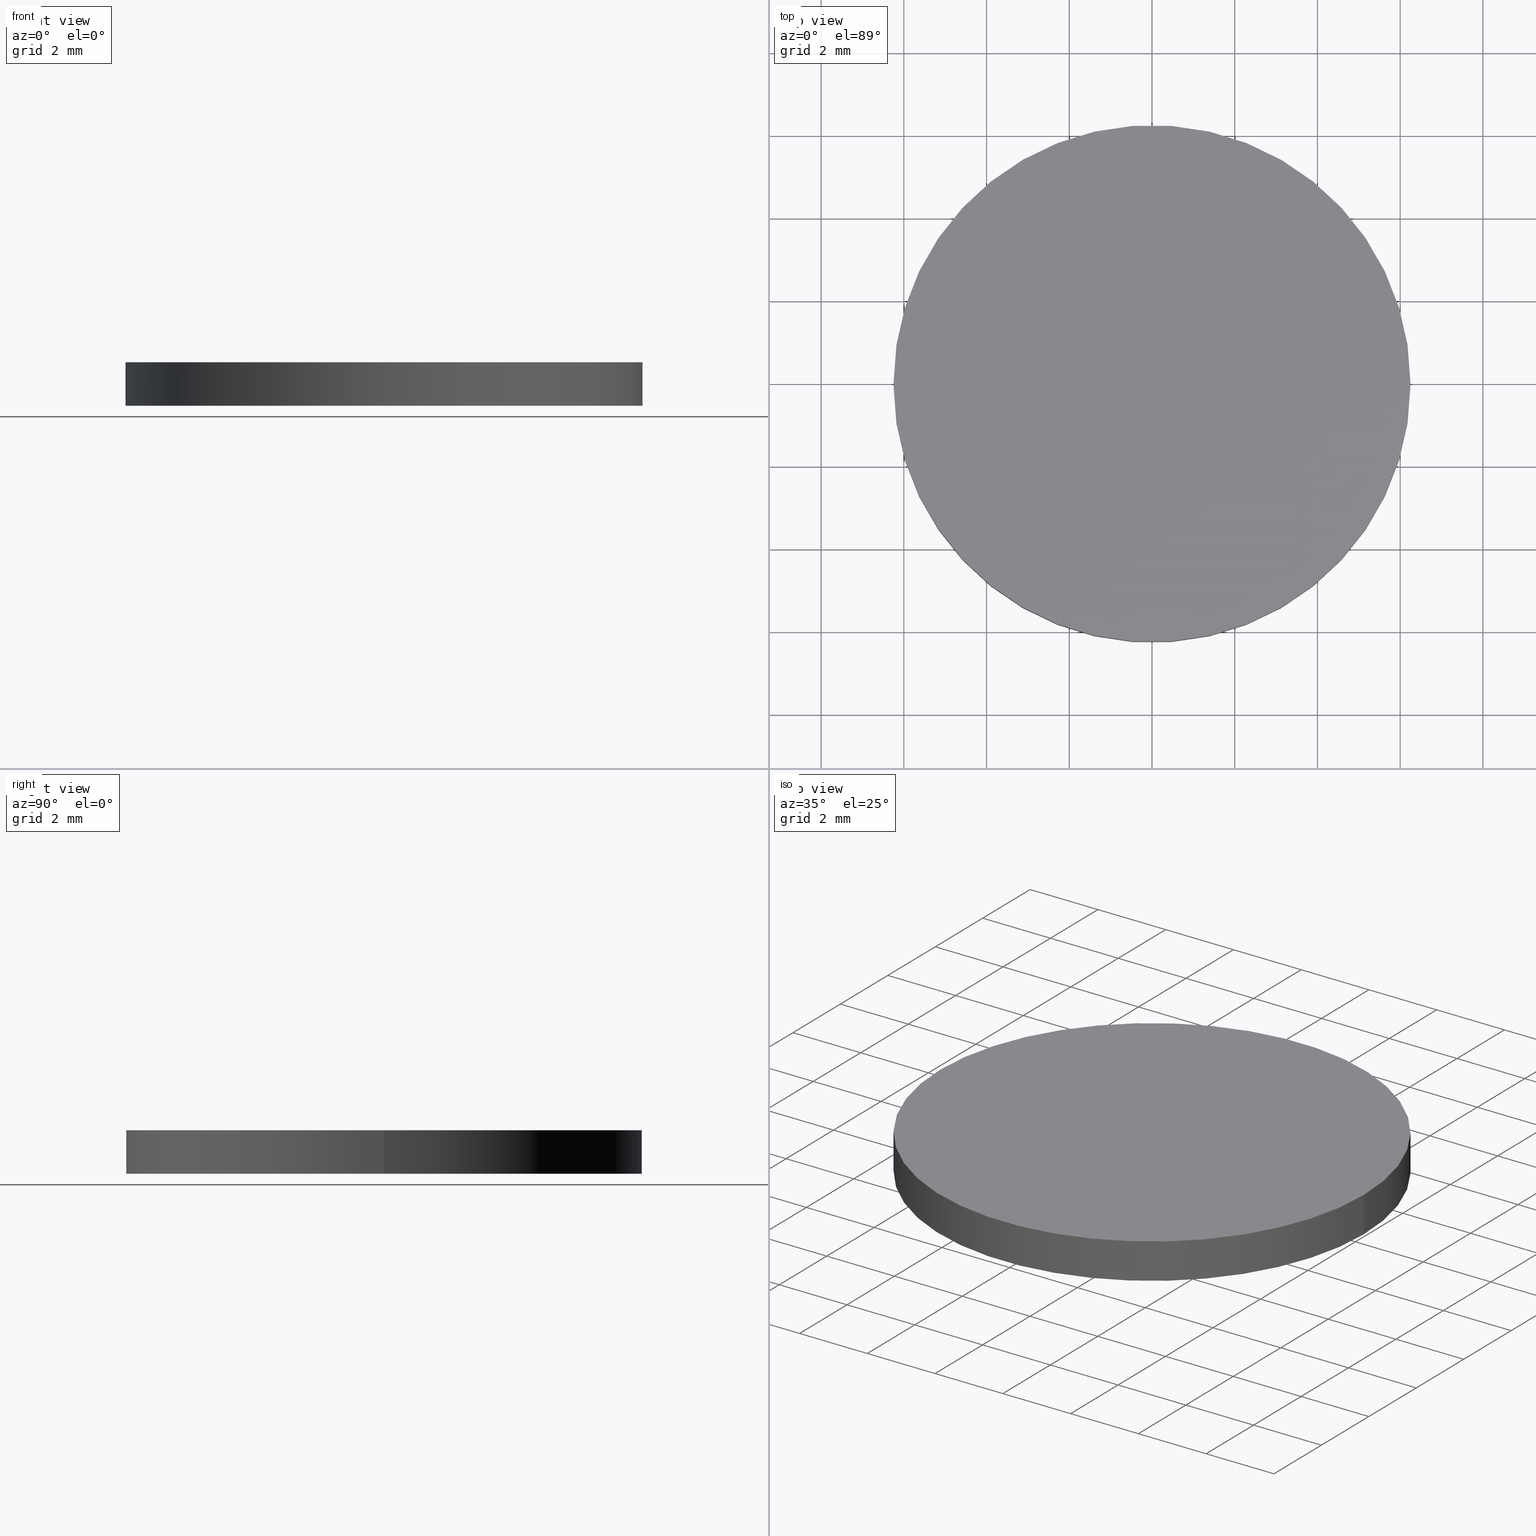
[diagram: canonical four-view strip — front | top / right | iso, engineering-drawing reading convention]
A machine part, canonical four-view strip (front | top / right | iso — engineering-drawing reading convention). The complete STEP part file that produces these views, byte-faithful:
ISO-10303-21;
HEADER;
FILE_DESCRIPTION (( 'STEP AP203' ),
    '1' );
FILE_NAME ('199686.STEP',
    '2020-03-11T06:12:56',
    ( '' ),
    ( '' ),
    'SwSTEP 2.0',
    'SolidWorks 2019',
    '' );
FILE_SCHEMA (( 'CONFIG_CONTROL_DESIGN' ));
ENDSEC;

DATA;
#1 = CARTESIAN_POINT ( 'NONE',  ( 0.0000000000000000000, 0.0000000000000000000, 0.0000000000000000000 ) ) ;
#2 = APPLICATION_PROTOCOL_DEFINITION ( 'international standard', 'config_control_design', 1994, #42 ) ;
#3 = DIRECTION ( 'NONE',  ( 0.0000000000000000000, 0.0000000000000000000, 1.000000000000000000 ) ) ;
#4 = DATE_AND_TIME ( #74, #138 ) ;
#5 = CALENDAR_DATE ( 2020, 11, 3 ) ;
#6 = PERSON_AND_ORGANIZATION_ROLE ( 'creator' ) ;
#7 = PRODUCT_DEFINITION_FORMATION_WITH_SPECIFIED_SOURCE ( '�κ�', '', #45, .NOT_KNOWN. ) ;
#8 = VECTOR ( 'NONE', #88, 1000.000000000000000 ) ;
#9 = FACE_OUTER_BOUND ( 'NONE', #20, .T. ) ;
#10 = APPROVAL ( #15, 'δָ��' ) ;
#11 = CIRCLE ( 'NONE', #32, 6.249999999999998224 ) ;
#12 = CC_DESIGN_PERSON_AND_ORGANIZATION_ASSIGNMENT ( #171, #6, ( #7 ) ) ;
#13 = LINE ( 'NONE', #100, #8 ) ;
#14 = PLANE ( 'NONE',  #106 ) ;
#15 = APPROVAL_STATUS ( 'not_yet_approved' ) ;
#16 = APPROVAL_STATUS ( 'not_yet_approved' ) ;
#17 = PERSON_AND_ORGANIZATION_ROLE ( 'design_supplier' ) ;
#18 = AXIS2_PLACEMENT_3D ( 'NONE', #164, #165, #28 ) ;
#19 = CYLINDRICAL_SURFACE ( 'NONE', #123, 6.249999999999998224 ) ;
#20 = EDGE_LOOP ( 'NONE', ( #154, #55 ) ) ;
#21 = MANIFOLD_SOLID_BREP ( '͹̨-����1', #79 ) ;
#22 = ORIENTED_EDGE ( 'NONE', *, *, #173, .T. ) ;
#23 = ADVANCED_FACE ( 'NONE', ( #175 ), #19, .T. ) ;
#24 = ORIENTED_EDGE ( 'NONE', *, *, #78, .T. ) ;
#25 = DIRECTION ( 'NONE',  ( 1.000000000000000000, 0.0000000000000000000, 0.0000000000000000000 ) ) ;
#26 =( NAMED_UNIT ( * ) PLANE_ANGLE_UNIT ( ) SI_UNIT ( $, .RADIAN. ) );
#27 = CC_DESIGN_APPROVAL ( #92, ( #7 ) ) ;
#28 = DIRECTION ( 'NONE',  ( 1.000000000000000000, 0.0000000000000000000, 0.0000000000000000000 ) ) ;
#29 = CC_DESIGN_SECURITY_CLASSIFICATION ( #58, ( #7 ) ) ;
#30 = APPROVAL_STATUS ( 'not_yet_approved' ) ;
#31 = CARTESIAN_POINT ( 'NONE',  ( -6.249999999999998224, 0.0000000000000000000, 0.0000000000000000000 ) ) ;
#32 = AXIS2_PLACEMENT_3D ( 'NONE', #130, #83, #25 ) ;
#33 = CALENDAR_DATE ( 2020, 11, 3 ) ;
#34 = ADVANCED_FACE ( 'NONE', ( #9 ), #108, .T. ) ;
#35 = CALENDAR_DATE ( 2020, 11, 3 ) ;
#36 = CC_DESIGN_DATE_AND_TIME_ASSIGNMENT ( #160, #169, ( #58 ) ) ;
#37 = ORIENTED_EDGE ( 'NONE', *, *, #40, .T. ) ;
#38 = ORIENTED_EDGE ( 'NONE', *, *, #84, .F. ) ;
#39 = CC_DESIGN_APPROVAL ( #49, ( #109 ) ) ;
#40 = EDGE_CURVE ( 'NONE', #155, #124, #43, .T. ) ;
#41 = CARTESIAN_POINT ( 'NONE',  ( 0.0000000000000000000, 0.0000000000000000000, 0.0000000000000000000 ) ) ;
#42 = APPLICATION_CONTEXT ( 'configuration controlled 3d designs of mechanical parts and assemblies' ) ;
#43 = CIRCLE ( 'NONE', #69, 6.249999999999998224 ) ;
#44 = DIRECTION ( 'NONE',  ( 0.0000000000000000000, 0.0000000000000000000, 1.000000000000000000 ) ) ;
#45 = PRODUCT ( '199686', '199686', '', ( #112 ) ) ;
#46 = CARTESIAN_POINT ( 'NONE',  ( 0.0000000000000000000, 0.0000000000000000000, 0.0000000000000000000 ) ) ;
#47 = AXIS2_PLACEMENT_3D ( 'NONE', #143, #128, #144 ) ;
#48 = CC_DESIGN_APPROVAL ( #10, ( #58 ) ) ;
#49 = APPROVAL ( #30, 'δָ��' ) ;
#50 = APPROVAL_DATE_TIME ( #101, #49 ) ;
#51 = APPROVAL_PERSON_ORGANIZATION ( #132, #49, #113 ) ;
#52 = DATE_AND_TIME ( #5, #67 ) ;
#53 = PERSON_AND_ORGANIZATION ( #96, #129 ) ;
#54 = CIRCLE ( 'NONE', #120, 6.249999999999998224 ) ;
#55 = ORIENTED_EDGE ( 'NONE', *, *, #59, .T. ) ;
#56 = PRODUCT_RELATED_PRODUCT_CATEGORY ( 'detail', '', ( #45 ) ) ;
#57 = DIRECTION ( 'NONE',  ( 1.000000000000000000, 0.0000000000000000000, -0.0000000000000000000 ) ) ;
#58 = SECURITY_CLASSIFICATION ( '', '', #75 ) ;
#59 = EDGE_CURVE ( 'NONE', #161, #82, #11, .T. ) ;
#60 = PERSON_AND_ORGANIZATION_ROLE ( 'design_owner' ) ;
#61 =( LENGTH_UNIT ( ) NAMED_UNIT ( * ) SI_UNIT ( .MILLI., .METRE. ) );
#62 = DIRECTION ( 'NONE',  ( 0.0000000000000000000, 0.0000000000000000000, 1.000000000000000000 ) ) ;
#63 = COORDINATED_UNIVERSAL_TIME_OFFSET ( 8, 0, .AHEAD. ) ;
#64 = PERSON_AND_ORGANIZATION ( #96, #129 ) ;
#65 = LOCAL_TIME ( 14, 12, 56.00000000000000000, #87 ) ;
#66 = COORDINATED_UNIVERSAL_TIME_OFFSET ( 8, 0, .AHEAD. ) ;
#67 = LOCAL_TIME ( 14, 12, 56.00000000000000000, #63 ) ;
#68 = EDGE_CURVE ( 'NONE', #82, #124, #71, .T. ) ;
#69 = AXIS2_PLACEMENT_3D ( 'NONE', #41, #111, #131 ) ;
#70 = APPLICATION_CONTEXT ( 'configuration controlled 3d designs of mechanical parts and assemblies' ) ;
#71 = LINE ( 'NONE', #145, #140 ) ;
#72 = CARTESIAN_POINT ( 'NONE',  ( 6.249999999999998224, 7.654042494670955634E-16, 1.050000000000000044 ) ) ;
#73 = APPROVAL_ROLE ( '' ) ;
#74 = CALENDAR_DATE ( 2020, 11, 3 ) ;
#75 = SECURITY_CLASSIFICATION_LEVEL ( 'unclassified' ) ;
#76 = APPROVAL_PERSON_ORGANIZATION ( #53, #10, #73 ) ;
#77 = CC_DESIGN_DATE_AND_TIME_ASSIGNMENT ( #116, #168, ( #109 ) ) ;
#78 = EDGE_CURVE ( 'NONE', #124, #155, #54, .T. ) ;
#79 = CLOSED_SHELL ( 'NONE', ( #23, #151, #34, #148 ) ) ;
#80 = DIRECTION ( 'NONE',  ( -0.0000000000000000000, -0.0000000000000000000, -1.000000000000000000 ) ) ;
#81 = ORIENTED_EDGE ( 'NONE', *, *, #40, .F. ) ;
#82 = VERTEX_POINT ( 'NONE', #114 ) ;
#83 = DIRECTION ( 'NONE',  ( 0.0000000000000000000, 0.0000000000000000000, 1.000000000000000000 ) ) ;
#84 = EDGE_CURVE ( 'NONE', #82, #161, #147, .T. ) ;
#85 =( NAMED_UNIT ( * ) SI_UNIT ( $, .STERADIAN. ) SOLID_ANGLE_UNIT ( ) );
#86 = PERSON_AND_ORGANIZATION ( #96, #129 ) ;
#87 = COORDINATED_UNIVERSAL_TIME_OFFSET ( 8, 0, .AHEAD. ) ;
#88 = DIRECTION ( 'NONE',  ( -0.0000000000000000000, -0.0000000000000000000, -1.000000000000000000 ) ) ;
#89 = AXIS2_PLACEMENT_3D ( 'NONE', #158, #3, #146 ) ;
#90 = COORDINATED_UNIVERSAL_TIME_OFFSET ( 8, 0, .AHEAD. ) ;
#91 = PERSON_AND_ORGANIZATION ( #96, #129 ) ;
#92 = APPROVAL ( #16, 'δָ��' ) ;
#93 = CARTESIAN_POINT ( 'NONE',  ( 0.0000000000000000000, 0.0000000000000000000, 1.050000000000000044 ) ) ;
#94 = EDGE_LOOP ( 'NONE', ( #104, #22, #37, #127 ) ) ;
#95 = DIRECTION ( 'NONE',  ( -0.0000000000000000000, -0.0000000000000000000, -1.000000000000000000 ) ) ;
#96 = PERSON ( 'δָ��', 'δָ��', 'δָ��', ('δָ��'), ('δָ��'), ('δָ��') ) ;
#97 = CARTESIAN_POINT ( 'NONE',  ( 6.249999999999998224, 7.654042494670955634E-16, 0.0000000000000000000 ) ) ;
#98 = APPROVAL_PERSON_ORGANIZATION ( #149, #92, #137 ) ;
#99 = APPLICATION_PROTOCOL_DEFINITION ( 'international standard', 'config_control_design', 1994, #70 ) ;
#100 = CARTESIAN_POINT ( 'NONE',  ( 6.249999999999998224, 7.654042494670955634E-16, 1.050000000000000044 ) ) ;
#101 = DATE_AND_TIME ( #33, #65 ) ;
#102 = APPROVAL_DATE_TIME ( #52, #10 ) ;
#103 = CC_DESIGN_PERSON_AND_ORGANIZATION_ASSIGNMENT ( #64, #136, ( #58 ) ) ;
#104 = ORIENTED_EDGE ( 'NONE', *, *, #59, .F. ) ;
#105 = EDGE_LOOP ( 'NONE', ( #162, #38, #126, #24 ) ) ;
#106 = AXIS2_PLACEMENT_3D ( 'NONE', #1, #62, #115 ) ;
#107 = CARTESIAN_POINT ( 'NONE',  ( 0.0000000000000000000, 0.0000000000000000000, 1.050000000000000044 ) ) ;
#108 = PLANE ( 'NONE',  #134 ) ;
#109 = PRODUCT_DEFINITION ( 'δ֪', '', #7, #166 ) ;
#110 =( GEOMETRIC_REPRESENTATION_CONTEXT ( 3 ) GLOBAL_UNCERTAINTY_ASSIGNED_CONTEXT ( ( #172 ) ) GLOBAL_UNIT_ASSIGNED_CONTEXT ( ( #61, #26, #85 ) ) REPRESENTATION_CONTEXT ( 'NONE', 'WORKASPACE' ) );
#111 = DIRECTION ( 'NONE',  ( 0.0000000000000000000, 0.0000000000000000000, 1.000000000000000000 ) ) ;
#112 = MECHANICAL_CONTEXT ( 'NONE', #42, 'mechanical' ) ;
#113 = APPROVAL_ROLE ( '' ) ;
#114 = CARTESIAN_POINT ( 'NONE',  ( -6.249999999999998224, 0.0000000000000000000, 1.050000000000000044 ) ) ;
#115 = DIRECTION ( 'NONE',  ( 1.000000000000000000, 0.0000000000000000000, -0.0000000000000000000 ) ) ;
#116 = DATE_AND_TIME ( #159, #153 ) ;
#117 = PRODUCT_DEFINITION_SHAPE ( 'NONE', 'NONE',  #109 ) ;
#118 = CC_DESIGN_PERSON_AND_ORGANIZATION_ASSIGNMENT ( #150, #17, ( #7 ) ) ;
#119 = COORDINATED_UNIVERSAL_TIME_OFFSET ( 8, 0, .AHEAD. ) ;
#120 = AXIS2_PLACEMENT_3D ( 'NONE', #46, #44, #133 ) ;
#121 = APPROVAL_DATE_TIME ( #4, #92 ) ;
#122 = CC_DESIGN_PERSON_AND_ORGANIZATION_ASSIGNMENT ( #91, #135, ( #109 ) ) ;
#123 = AXIS2_PLACEMENT_3D ( 'NONE', #93, #80, #141 ) ;
#124 = VERTEX_POINT ( 'NONE', #31 ) ;
#125 = EDGE_LOOP ( 'NONE', ( #142, #81 ) ) ;
#126 = ORIENTED_EDGE ( 'NONE', *, *, #68, .T. ) ;
#127 = ORIENTED_EDGE ( 'NONE', *, *, #68, .F. ) ;
#128 = DIRECTION ( 'NONE',  ( -0.0000000000000000000, -0.0000000000000000000, -1.000000000000000000 ) ) ;
#129 = ORGANIZATION ( 'δָ��', 'δָ��', '' ) ;
#130 = CARTESIAN_POINT ( 'NONE',  ( 0.0000000000000000000, 0.0000000000000000000, 1.050000000000000044 ) ) ;
#131 = DIRECTION ( 'NONE',  ( 1.000000000000000000, 0.0000000000000000000, 0.0000000000000000000 ) ) ;
#132 = PERSON_AND_ORGANIZATION ( #96, #129 ) ;
#133 = DIRECTION ( 'NONE',  ( 1.000000000000000000, 0.0000000000000000000, 0.0000000000000000000 ) ) ;
#134 = AXIS2_PLACEMENT_3D ( 'NONE', #107, #174, #57 ) ;
#135 = PERSON_AND_ORGANIZATION_ROLE ( 'creator' ) ;
#136 = PERSON_AND_ORGANIZATION_ROLE ( 'classification_officer' ) ;
#137 = APPROVAL_ROLE ( '' ) ;
#138 = LOCAL_TIME ( 14, 12, 56.00000000000000000, #119 ) ;
#139 = SHAPE_DEFINITION_REPRESENTATION ( #117, #170 ) ;
#140 = VECTOR ( 'NONE', #95, 1000.000000000000000 ) ;
#141 = DIRECTION ( 'NONE',  ( -1.000000000000000000, 0.0000000000000000000, 0.0000000000000000000 ) ) ;
#142 = ORIENTED_EDGE ( 'NONE', *, *, #78, .F. ) ;
#143 = CARTESIAN_POINT ( 'NONE',  ( 0.0000000000000000000, 0.0000000000000000000, 1.050000000000000044 ) ) ;
#144 = DIRECTION ( 'NONE',  ( -1.000000000000000000, 0.0000000000000000000, 0.0000000000000000000 ) ) ;
#145 = CARTESIAN_POINT ( 'NONE',  ( -6.249999999999998224, 0.0000000000000000000, 1.050000000000000044 ) ) ;
#146 = DIRECTION ( 'NONE',  ( 1.000000000000000000, 0.0000000000000000000, 0.0000000000000000000 ) ) ;
#147 = CIRCLE ( 'NONE', #89, 6.249999999999998224 ) ;
#148 = ADVANCED_FACE ( 'NONE', ( #156 ), #14, .F. ) ;
#149 = PERSON_AND_ORGANIZATION ( #96, #129 ) ;
#150 = PERSON_AND_ORGANIZATION ( #96, #129 ) ;
#151 = ADVANCED_FACE ( 'NONE', ( #163 ), #167, .T. ) ;
#152 = CC_DESIGN_PERSON_AND_ORGANIZATION_ASSIGNMENT ( #86, #60, ( #45 ) ) ;
#153 = LOCAL_TIME ( 14, 12, 56.00000000000000000, #90 ) ;
#154 = ORIENTED_EDGE ( 'NONE', *, *, #84, .T. ) ;
#155 = VERTEX_POINT ( 'NONE', #97 ) ;
#156 = FACE_OUTER_BOUND ( 'NONE', #125, .T. ) ;
#157 = LOCAL_TIME ( 14, 12, 56.00000000000000000, #66 ) ;
#158 = CARTESIAN_POINT ( 'NONE',  ( 0.0000000000000000000, 0.0000000000000000000, 1.050000000000000044 ) ) ;
#159 = CALENDAR_DATE ( 2020, 11, 3 ) ;
#160 = DATE_AND_TIME ( #35, #157 ) ;
#161 = VERTEX_POINT ( 'NONE', #72 ) ;
#162 = ORIENTED_EDGE ( 'NONE', *, *, #173, .F. ) ;
#163 = FACE_OUTER_BOUND ( 'NONE', #105, .T. ) ;
#164 = CARTESIAN_POINT ( 'NONE',  ( 0.0000000000000000000, 0.0000000000000000000, 0.0000000000000000000 ) ) ;
#165 = DIRECTION ( 'NONE',  ( 0.0000000000000000000, 0.0000000000000000000, 1.000000000000000000 ) ) ;
#166 = DESIGN_CONTEXT ( 'detailed design', #70, 'design' ) ;
#167 = CYLINDRICAL_SURFACE ( 'NONE', #47, 6.249999999999998224 ) ;
#168 = DATE_TIME_ROLE ( 'creation_date' ) ;
#169 = DATE_TIME_ROLE ( 'classification_date' ) ;
#170 = ADVANCED_BREP_SHAPE_REPRESENTATION ( '199686', ( #21, #18 ), #110 ) ;
#171 = PERSON_AND_ORGANIZATION ( #96, #129 ) ;
#172 = UNCERTAINTY_MEASURE_WITH_UNIT (LENGTH_MEASURE( 1.000000000000000082E-05 ), #61, 'distance_accuracy_value', 'NONE');
#173 = EDGE_CURVE ( 'NONE', #161, #155, #13, .T. ) ;
#174 = DIRECTION ( 'NONE',  ( 0.0000000000000000000, 0.0000000000000000000, 1.000000000000000000 ) ) ;
#175 = FACE_OUTER_BOUND ( 'NONE', #94, .T. ) ;
ENDSEC;
END-ISO-10303-21;
